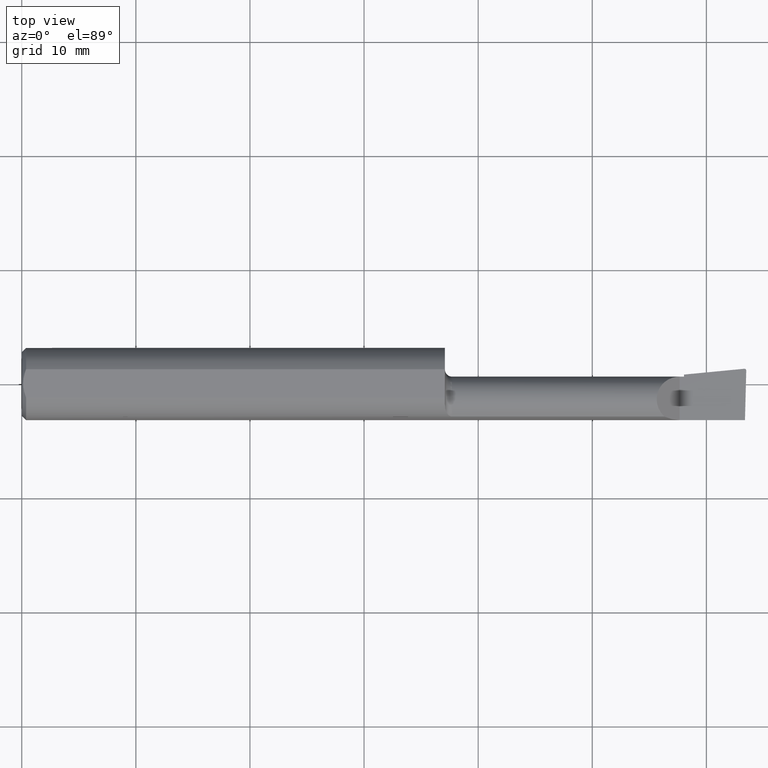
[diagram: clean part render]
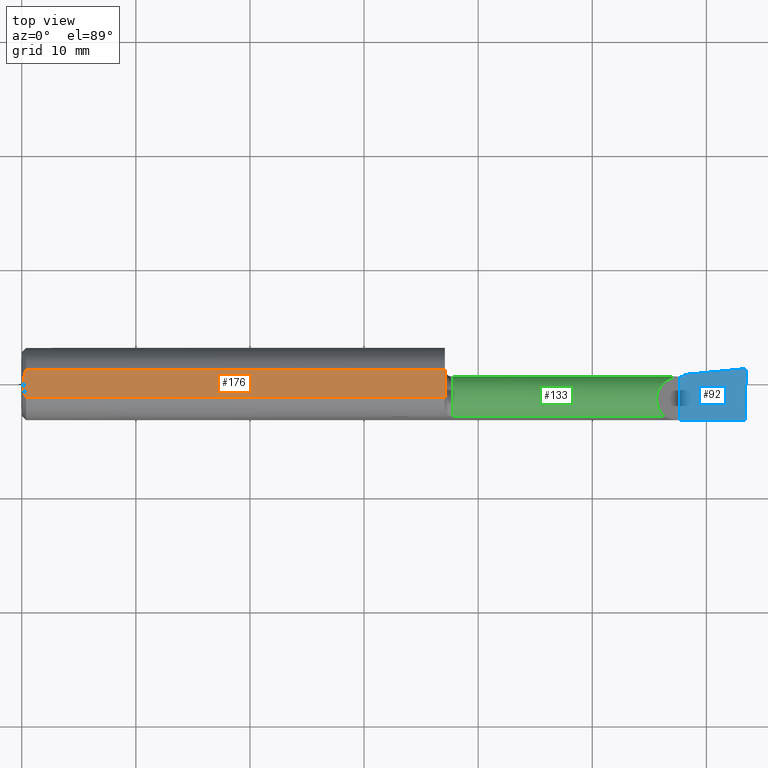
[diagram: same view with three faces highlighted in distinct colors, each labeled with its STEP entity id]
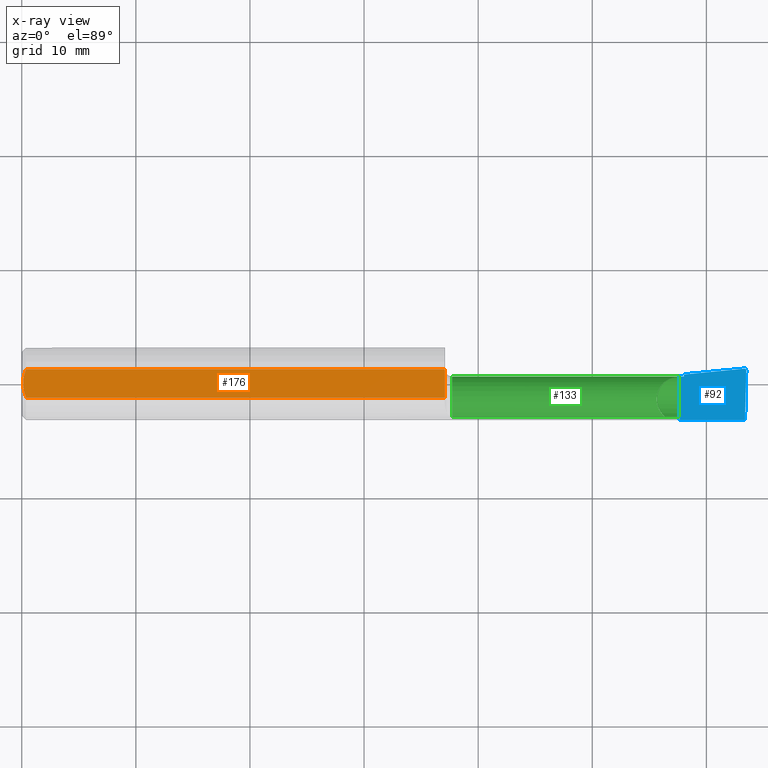
[diagram: x-ray of the same camera — body ghosted, the three highlighted faces saturated]
A machine part, top view with three faces highlighted in distinct colors.
The next image is the same camera in x-ray (body ghosted, the three faces saturated) — at least one of them is partly hidden behind the body in this view.
Their STEP definitions:

[orange] entity #176 — the highlighted planar face has unit normal (0, -0, -1).
#3 = ORIENTED_EDGE ( 'NONE', *, *, #365, .F. ) ;
#8 = CARTESIAN_POINT ( 'NONE',  ( 0.01193974418109659645, 0.04115525648180389656, 0.1148500000000000076 ) ) ;
#9 = CARTESIAN_POINT ( 'NONE',  ( 2.500000000000000000, 0.1748500000000000054, 0.1148500000000000076 ) ) ;
#35 = CARTESIAN_POINT ( 'NONE',  ( 0.005000000000000237761, 1.454187638523587873E-17, 0.1148500000000000076 ) ) ;
#46 = DIRECTION ( 'NONE',  ( 1.000000000000000000, 0.0000000000000000000, 0.0000000000000000000 ) ) ;
#47 = CARTESIAN_POINT ( 'NONE',  ( 0.005000000000000237761, 1.454187638523587873E-17, 0.1148500000000000076 ) ) ;
#61 = LINE ( 'NONE', #559, #432 ) ;
#69 = VERTEX_POINT ( 'NONE', #476 ) ;
#84 = ORIENTED_EDGE ( 'NONE', *, *, #283, .F. ) ;
#123 = CARTESIAN_POINT ( 'NONE',  ( 0.0000000000000000000, 0.04895916665957457392, 0.1148500000000000076 ) ) ;
#130 = LINE ( 'NONE', #123, #525 ) ;
#135 = AXIS2_PLACEMENT_3D ( 'NONE', #9, #642, #144 ) ;
#137 = EDGE_CURVE ( 'NONE', #69, #219, #306, .T. ) ;
#141 = ORIENTED_EDGE ( 'NONE', *, *, #137, .F. ) ;
#144 = DIRECTION ( 'NONE',  ( 0.0000000000000000000, 1.000000000000000000, -4.882484975808304553E-17 ) ) ;
#148 = EDGE_CURVE ( 'NONE', #178, #69, #61, .T. ) ;
#149 = CARTESIAN_POINT ( 'NONE',  ( 0.01499999999999999077, -0.04895916665957456004, 0.1148500000000000215 ) ) ;
#176 = ADVANCED_FACE ( 'NONE', ( #499 ), #641, .F. ) ;
#178 = VERTEX_POINT ( 'NONE', #232 ) ;
#219 = VERTEX_POINT ( 'NONE', #149 ) ;
#232 = CARTESIAN_POINT ( 'NONE',  ( 1.460000000000000187, 0.04895916665957456004, 0.1148500000000000076 ) ) ;
#283 = EDGE_CURVE ( 'NONE', #597, #178, #130, .T. ) ;
#293 = EDGE_LOOP ( 'NONE', ( #613, #84, #543, #3, #141 ) ) ;
#306 = LINE ( 'NONE', #486, #422 ) ;
#339 = CARTESIAN_POINT ( 'NONE',  ( 0.005000000000000194393, -0.008410771716546815852, 0.1148500000000000076 ) ) ;
#359 = CARTESIAN_POINT ( 'NONE',  ( 0.01195732443765553168, -0.04120008761723500251, 0.1148500000000000215 ) ) ;
#365 = EDGE_CURVE ( 'NONE', #219, #632, #564, .T. ) ;
#369 = CARTESIAN_POINT ( 'NONE',  ( 0.009415874254822530556, -0.03313958207962815899, 0.1148500000000000354 ) ) ;
#373 = EDGE_CURVE ( 'NONE', #632, #597, #496, .T. ) ;
#422 = VECTOR ( 'NONE', #493, 39.37007874015748143 ) ;
#432 = VECTOR ( 'NONE', #633, 39.37007874015748143 ) ;
#444 = CARTESIAN_POINT ( 'NONE',  ( 0.005932194444709924276, -0.01671525318617307979, 0.1148500000000000215 ) ) ;
#459 = CARTESIAN_POINT ( 'NONE',  ( 0.005000000000000195260, 0.008410227287019747533, 0.1148500000000000215 ) ) ;
#476 = CARTESIAN_POINT ( 'NONE',  ( 1.460000000000000187, -0.04895916665957457392, 0.1148500000000000215 ) ) ;
#486 = CARTESIAN_POINT ( 'NONE',  ( 0.0000000000000000000, -0.04895916665957456004, 0.1148500000000000076 ) ) ;
#493 = DIRECTION ( 'NONE',  ( -1.000000000000000000, -0.0000000000000000000, -0.0000000000000000000 ) ) ;
#496 = B_SPLINE_CURVE_WITH_KNOTS ( 'NONE', 3,
 ( #548, #459, #524, #650, #8, #630 ),
 .UNSPECIFIED., .F., .F.,
 ( 4, 2, 4 ),
 ( 0.002298356357403497086, 0.002932796277434359007, 0.003567236197465221362 ),
 .UNSPECIFIED. ) ;
#499 = FACE_OUTER_BOUND ( 'NONE', #293, .T. ) ;
#506 = CARTESIAN_POINT ( 'NONE',  ( 0.01499999999999999077, -0.04895916665957456004, 0.1148500000000000215 ) ) ;
#524 = CARTESIAN_POINT ( 'NONE',  ( 0.005947935873631425563, 0.01679708999422678192, 0.1148499999999999938 ) ) ;
#525 = VECTOR ( 'NONE', #46, 39.37007874015748143 ) ;
#529 = CARTESIAN_POINT ( 'NONE',  ( 0.01499999999999999424, 0.04895916665957457392, 0.1148500000000000076 ) ) ;
#543 = ORIENTED_EDGE ( 'NONE', *, *, #373, .F. ) ;
#548 = CARTESIAN_POINT ( 'NONE',  ( 0.005000000000000237761, 1.454187638523587873E-17, 0.1148500000000000076 ) ) ;
#559 = CARTESIAN_POINT ( 'NONE',  ( 1.460000000000000187, 0.1748500000000000054, 0.1148500000000000076 ) ) ;
#564 = B_SPLINE_CURVE_WITH_KNOTS ( 'NONE', 3,
 ( #506, #359, #369, #444, #339, #47 ),
 .UNSPECIFIED., .F., .F.,
 ( 4, 2, 4 ),
 ( 0.001029394377391489035, 0.001663875367397493060, 0.002298356357403497086 ),
 .UNSPECIFIED. ) ;
#597 = VERTEX_POINT ( 'NONE', #529 ) ;
#613 = ORIENTED_EDGE ( 'NONE', *, *, #148, .F. ) ;
#630 = CARTESIAN_POINT ( 'NONE',  ( 0.01499999999999999424, 0.04895916665957457392, 0.1148500000000000076 ) ) ;
#632 = VERTEX_POINT ( 'NONE', #35 ) ;
#633 = DIRECTION ( 'NONE',  ( -3.414809992080329023E-18, -1.000000000000000000, 4.882484975808304553E-17 ) ) ;
#641 = PLANE ( 'NONE',  #135 ) ;
#642 = DIRECTION ( 'NONE',  ( 0.0000000000000000000, -4.882484975808304553E-17, -1.000000000000000000 ) ) ;
#650 = CARTESIAN_POINT ( 'NONE',  ( 0.009410502401328815075, 0.03310661131402416191, 0.1148500000000000076 ) ) ;

[blue] entity #92 — the highlighted planar face has unit normal (-0, 0, -1).
#2 = CARTESIAN_POINT ( 'NONE',  ( 4.111069666048746882E-31, -0.1248499999999999888, 9.802154982235641300E-16 ) ) ;
#31 = EDGE_CURVE ( 'NONE', #311, #119, #614, .T. ) ;
#52 = ORIENTED_EDGE ( 'NONE', *, *, #487, .T. ) ;
#53 = CARTESIAN_POINT ( 'NONE',  ( 2.493512870449331675, 0.05249616680637380489, -5.122214988120493535E-17 ) ) ;
#55 = EDGE_CURVE ( 'NONE', #572, #520, #110, .T. ) ;
#66 = CARTESIAN_POINT ( 'NONE',  ( 2.493512870449331675, 0.05249616680637380489, -5.122214988120493535E-17 ) ) ;
#68 = CARTESIAN_POINT ( 'NONE',  ( 2.492906680581910006, 0.05246699102467097114, -6.532122848641467145E-17 ) ) ;
#77 = VECTOR ( 'NONE', #483, 39.37007874015748143 ) ;
#90 = VECTOR ( 'NONE', #177, 39.37007874015748143 ) ;
#92 = ADVANCED_FACE ( 'NONE', ( #538 ), #222, .F. ) ;
#99 = CARTESIAN_POINT ( 'NONE',  ( 1.387204702863203742, -0.05399999999999999939, 3.984153547983287662E-16 ) ) ;
#110 = LINE ( 'NONE', #2, #90 ) ;
#119 = VERTEX_POINT ( 'NONE', #68 ) ;
#125 = EDGE_CURVE ( 'NONE', #241, #311, #138, .T. ) ;
#138 = LINE ( 'NONE', #532, #379 ) ;
#146 = VECTOR ( 'NONE', #631, 39.37007874015748143 ) ;
#170 = DIRECTION ( 'NONE',  ( 1.000000000000000000, -3.414809992080329023E-18, 0.0000000000000000000 ) ) ;
#172 = EDGE_LOOP ( 'NONE', ( #52, #624, #362, #392, #393, #203, #435, #310 ) ) ;
#174 = CARTESIAN_POINT ( 'NONE',  ( 2.270000000000000018, 0.02514999999999986691, 2.816687638038912303E-17 ) ) ;
#177 = DIRECTION ( 'NONE',  ( -1.000000000000000000, -0.0000000000000000000, -0.0000000000000000000 ) ) ;
#185 = CARTESIAN_POINT ( 'NONE',  ( 2.270000000000000018, -0.1248500000000000165, 2.816687638038912303E-17 ) ) ;
#188 = VERTEX_POINT ( 'NONE', #214 ) ;
#192 = CARTESIAN_POINT ( 'NONE',  ( 2.492067177432473635, -0.2497922717304240092, -6.496913693731578984E-17 ) ) ;
#203 = ORIENTED_EDGE ( 'NONE', *, *, #557, .F. ) ;
#204 = CARTESIAN_POINT ( 'NONE',  ( 2.499806390372797171, 0.04575634663142228581, -6.816679106956261721E-17 ) ) ;
#214 = CARTESIAN_POINT ( 'NONE',  ( 2.499806390372797171, 0.04575634663142228581, -6.816679106956261721E-17 ) ) ;
#218 = CARTESIAN_POINT ( 'NONE',  ( 2.493108609909240325, 0.05248643460740281402, -5.116154136438505500E-17 ) ) ;
#222 = PLANE ( 'NONE',  #570 ) ;
#226 = VECTOR ( 'NONE', #231, 39.37007874015748854 ) ;
#231 = DIRECTION ( 'NONE',  ( 0.02617694830793667465, 0.9996573249755555945, -1.081567693923466137E-17 ) ) ;
#235 = DIRECTION ( 'NONE',  ( -1.000000000000000000, 0.0000000000000000000, 4.194046792260684025E-16 ) ) ;
#237 = CARTESIAN_POINT ( 'NONE',  ( 2.493512870449331675, 0.05249616680637380489, -5.122214988120493535E-17 ) ) ;
#241 = VERTEX_POINT ( 'NONE', #505 ) ;
#246 = CARTESIAN_POINT ( 'NONE',  ( 2.493310817358693754, 0.05249616680637380489, -5.124634811486028890E-17 ) ) ;
#275 = EDGE_CURVE ( 'NONE', #520, #280, #551, .T. ) ;
#280 = VERTEX_POINT ( 'NONE', #174 ) ;
#310 = ORIENTED_EDGE ( 'NONE', *, *, #55, .F. ) ;
#311 = VERTEX_POINT ( 'NONE', #629 ) ;
#315 = CARTESIAN_POINT ( 'NONE',  ( 2.497312560284842053, 0.05249616680637387428, -5.292469782314655041E-17 ) ) ;
#317 = EDGE_CURVE ( 'NONE', #188, #335, #446, .T. ) ;
#323 = EDGE_CURVE ( 'NONE', #335, #119, #547, .T. ) ;
#331 = CARTESIAN_POINT ( 'NONE',  ( 2.500000000000000000, -0.2500000000000000555, -6.829619984160658046E-17 ) ) ;
#335 = VERTEX_POINT ( 'NONE', #53 ) ;
#361 = CARTESIAN_POINT ( 'NONE',  ( 2.702822108735688752E-19, 0.02514999999999991895, 9.802154982235641300E-16 ) ) ;
#362 = ORIENTED_EDGE ( 'NONE', *, *, #323, .T. ) ;
#374 = LINE ( 'NONE', #192, #226 ) ;
#379 = VECTOR ( 'NONE', #490, 39.37007874015748143 ) ;
#387 = LINE ( 'NONE', #361, #596 ) ;
#392 = ORIENTED_EDGE ( 'NONE', *, *, #31, .F. ) ;
#393 = ORIENTED_EDGE ( 'NONE', *, *, #125, .F. ) ;
#428 = DIRECTION ( 'NONE',  ( -4.194046792260684025E-16, 0.0000000000000000000, -1.000000000000000000 ) ) ;
#435 = ORIENTED_EDGE ( 'NONE', *, *, #275, .F. ) ;
#446 =( BOUNDED_CURVE ( )  B_SPLINE_CURVE ( 3, ( #204, #648, #315, #66 ),
 .UNSPECIFIED., .F., .F. ) 
 B_SPLINE_CURVE_WITH_KNOTS ( ( 4, 4 ),
 ( 1.953092279228672234, 3.511516179717975472 ),
 .UNSPECIFIED. ) 
 CURVE ( )  GEOMETRIC_REPRESENTATION_ITEM ( )  RATIONAL_B_SPLINE_CURVE ( ( 1.000000000000000000, 0.8076450242550304859, 0.8076450242550304859, 1.000000000000000000 ) ) 
 REPRESENTATION_ITEM ( '' )  );
#462 = CARTESIAN_POINT ( 'NONE',  ( 2.492906680581910006, 0.05246699102467097114, -6.532122848641467145E-17 ) ) ;
#483 = DIRECTION ( 'NONE',  ( 0.9953961983671787417, 0.09584575252022459191, -4.174738232790345673E-16 ) ) ;
#487 = EDGE_CURVE ( 'NONE', #572, #188, #374, .T. ) ;
#490 = DIRECTION ( 'NONE',  ( 3.414809992080329408E-18, 1.000000000000000000, -1.432187289346423802E-33 ) ) ;
#505 = CARTESIAN_POINT ( 'NONE',  ( 2.285000000000000142, 0.02514999999999996058, 9.802154982235647216E-16 ) ) ;
#507 = CARTESIAN_POINT ( 'NONE',  ( 2.495338905960690301, -0.1248500000000000582, -6.632093541198147639E-17 ) ) ;
#520 = VERTEX_POINT ( 'NONE', #185 ) ;
#532 = CARTESIAN_POINT ( 'NONE',  ( 2.285000000000000142, -0.2500000000000000555, 2.187580619199813988E-17 ) ) ;
#538 = FACE_OUTER_BOUND ( 'NONE', #172, .T. ) ;
#547 =( BOUNDED_CURVE ( )  B_SPLINE_CURVE ( 3, ( #237, #246, #218, #462 ),
 .UNSPECIFIED., .F., .T. ) 
 B_SPLINE_CURVE_WITH_KNOTS ( ( 4, 4 ),
 ( 3.511516179717975472, 3.604018710826573546 ),
 .UNSPECIFIED. ) 
 CURVE ( )  GEOMETRIC_REPRESENTATION_ITEM ( )  RATIONAL_B_SPLINE_CURVE ( ( 1.000000000000000000, 0.9992870672494007511, 0.9992870672494007511, 1.000000000000000000 ) ) 
 REPRESENTATION_ITEM ( '' )  );
#551 = LINE ( 'NONE', #661, #146 ) ;
#557 = EDGE_CURVE ( 'NONE', #280, #241, #387, .T. ) ;
#570 = AXIS2_PLACEMENT_3D ( 'NONE', #331, #428, #235 ) ;
#572 = VERTEX_POINT ( 'NONE', #507 ) ;
#596 = VECTOR ( 'NONE', #170, 39.37007874015748143 ) ;
#614 = LINE ( 'NONE', #99, #77 ) ;
#624 = ORIENTED_EDGE ( 'NONE', *, *, #317, .T. ) ;
#629 = CARTESIAN_POINT ( 'NONE',  ( 2.285000000000000142, 0.03244785463753243476, 9.796236164780443746E-16 ) ) ;
#631 = DIRECTION ( 'NONE',  ( -0.0000000000000000000, 1.000000000000000000, -0.0000000000000000000 ) ) ;
#648 = CARTESIAN_POINT ( 'NONE',  ( 2.499910038027521875, 0.04971449087509935416, -5.401409214261198838E-17 ) ) ;
#661 = CARTESIAN_POINT ( 'NONE',  ( 2.270000000000000018, -0.2500000000000000555, 2.816687638038912303E-17 ) ) ;

[green] entity #133 — the highlighted cylindrical surface (edge-blend (fillet) strip) has radius 2.0104 mm, axis along (-1, 0, -0).
#4 = CARTESIAN_POINT ( 'NONE',  ( 1.485000000000000098, -0.1133222222222221853, -0.05239843939104740084 ) ) ;
#10 = CARTESIAN_POINT ( 'NONE',  ( 0.0000000000000000000, -0.05399999999999999245, 0.0000000000000000000 ) ) ;
#20 = CARTESIAN_POINT ( 'NONE',  ( 2.285000000000000142, -0.01935479767416495300, -0.07116482597324287618 ) ) ;
#21 = DIRECTION ( 'NONE',  ( 0.0000000000000000000, -1.000000000000000000, 0.0000000000000000000 ) ) ;
#29 = DIRECTION ( 'NONE',  ( -1.000000000000000000, 3.414809992080329023E-18, -0.0000000000000000000 ) ) ;
#34 = CARTESIAN_POINT ( 'NONE',  ( 2.486868858499483803, -0.07705019563525719595, -0.07914999999999994262 ) ) ;
#42 = CARTESIAN_POINT ( 'NONE',  ( 2.285000000000000142, 0.01818157456899023236, -0.03247372465149773318 ) ) ;
#63 = DIRECTION ( 'NONE',  ( -3.414809992080329408E-18, -1.000000000000000000, 0.0000000000000000000 ) ) ;
#94 = VERTEX_POINT ( 'NONE', #4 ) ;
#96 = AXIS2_PLACEMENT_3D ( 'NONE', #616, #108, #181 ) ;
#108 = DIRECTION ( 'NONE',  ( -1.000000000000000000, 3.414809992080329023E-18, -0.0000000000000000000 ) ) ;
#122 = CYLINDRICAL_SURFACE ( 'NONE', #549, 0.07914999999999992875 ) ;
#129 = CARTESIAN_POINT ( 'NONE',  ( 2.285000000000000142, -0.05399999999999999939, 0.0000000000000000000 ) ) ;
#133 = ADVANCED_FACE ( 'NONE', ( #589 ), #122, .T. ) ;
#157 = EDGE_CURVE ( 'NONE', #241, #439, #449, .T. ) ;
#160 =( BOUNDED_CURVE ( )  B_SPLINE_CURVE ( 3, ( #471, #250, #508, #527 ),
 .UNSPECIFIED., .F., .T. ) 
 B_SPLINE_CURVE_WITH_KNOTS ( ( 4, 4 ),
 ( 5.435892245814752499, 7.853981633974484566 ),
 .UNSPECIFIED. ) 
 CURVE ( )  GEOMETRIC_REPRESENTATION_ITEM ( )  RATIONAL_B_SPLINE_CURVE ( ( 1.000000000000000000, 0.5692753596694920537, 0.5692753596694920537, 1.000000000000000000 ) ) 
 REPRESENTATION_ITEM ( '' )  );
#166 = VERTEX_POINT ( 'NONE', #377 ) ;
#168 = ORIENTED_EDGE ( 'NONE', *, *, #347, .T. ) ;
#170 = DIRECTION ( 'NONE',  ( 1.000000000000000000, -3.414809992080329023E-18, 0.0000000000000000000 ) ) ;
#174 = CARTESIAN_POINT ( 'NONE',  ( 2.270000000000000018, 0.02514999999999986691, 2.816687638038912303E-17 ) ) ;
#181 = DIRECTION ( 'NONE',  ( 0.0000000000000000000, -1.000000000000000000, 0.0000000000000000000 ) ) ;
#184 = EDGE_LOOP ( 'NONE', ( #465, #276, #512, #168, #295, #494, #627, #649, #628, #243 ) ) ;
#187 = LINE ( 'NONE', #611, #321 ) ;
#194 = CARTESIAN_POINT ( 'NONE',  ( 2.489204846642126157, -0.1133222222222223519, -0.05239843939104731063 ) ) ;
#200 = AXIS2_PLACEMENT_3D ( 'NONE', #257, #260, #262 ) ;
#207 = DIRECTION ( 'NONE',  ( 0.0000000000000000000, -1.000000000000000000, 1.776356839400250465E-15 ) ) ;
#221 = VECTOR ( 'NONE', #503, 39.37007874015748143 ) ;
#223 = EDGE_CURVE ( 'NONE', #352, #94, #372, .T. ) ;
#224 = VERTEX_POINT ( 'NONE', #20 ) ;
#238 = EDGE_CURVE ( 'NONE', #252, #280, #160, .T. ) ;
#240 = CARTESIAN_POINT ( 'NONE',  ( 2.285000000000000142, -0.05399999999999999939, 0.0000000000000000000 ) ) ;
#241 = VERTEX_POINT ( 'NONE', #505 ) ;
#243 = ORIENTED_EDGE ( 'NONE', *, *, #415, .F. ) ;
#250 = CARTESIAN_POINT ( 'NONE',  ( 2.152626807264919506, -0.05593098589442772189, 0.1173731927350791099 ) ) ;
#252 = VERTEX_POINT ( 'NONE', #555 ) ;
#253 = DIRECTION ( 'NONE',  ( 1.000000000000000000, -3.414809992080329023E-18, 0.0000000000000000000 ) ) ;
#256 = CIRCLE ( 'NONE', #96, 0.07914999999999988711 ) ;
#257 = CARTESIAN_POINT ( 'NONE',  ( 2.285000000000000142, -0.05399999999999999939, 0.0000000000000000000 ) ) ;
#258 = DIRECTION ( 'NONE',  ( -1.000000000000000000, 5.691349986800549142E-18, -0.0000000000000000000 ) ) ;
#259 = EDGE_CURVE ( 'NONE', #352, #384, #513, .T. ) ;
#260 = DIRECTION ( 'NONE',  ( -1.000000000000000000, 3.414809992080329023E-18, -0.0000000000000000000 ) ) ;
#262 = DIRECTION ( 'NONE',  ( 0.0000000000000000000, -1.000000000000000000, 0.0000000000000000000 ) ) ;
#263 = EDGE_CURVE ( 'NONE', #224, #439, #663, .T. ) ;
#276 = ORIENTED_EDGE ( 'NONE', *, *, #223, .T. ) ;
#279 = AXIS2_PLACEMENT_3D ( 'NONE', #129, #253, #207 ) ;
#280 = VERTEX_POINT ( 'NONE', #174 ) ;
#284 = CARTESIAN_POINT ( 'NONE',  ( 1.885000000000000231, -0.1133222222222223519, -0.05239843939104731063 ) ) ;
#290 = EDGE_CURVE ( 'NONE', #224, #340, #371, .T. ) ;
#295 = ORIENTED_EDGE ( 'NONE', *, *, #238, .T. ) ;
#321 = VECTOR ( 'NONE', #396, 39.37007874015748143 ) ;
#340 = VERTEX_POINT ( 'NONE', #662 ) ;
#347 = EDGE_CURVE ( 'NONE', #166, #252, #187, .T. ) ;
#352 = VERTEX_POINT ( 'NONE', #615 ) ;
#361 = CARTESIAN_POINT ( 'NONE',  ( 2.702822108735688752E-19, 0.02514999999999991895, 9.802154982235641300E-16 ) ) ;
#371 = CIRCLE ( 'NONE', #200, 0.07914999999999995650 ) ;
#372 = LINE ( 'NONE', #284, #221 ) ;
#375 = VECTOR ( 'NONE', #258, 39.37007874015748143 ) ;
#377 = CARTESIAN_POINT ( 'NONE',  ( 1.485000000000000098, -0.1133222222222221992, 0.05239843939104738696 ) ) ;
#380 = EDGE_CURVE ( 'NONE', #166, #94, #256, .T. ) ;
#384 = VERTEX_POINT ( 'NONE', #537 ) ;
#387 = LINE ( 'NONE', #361, #596 ) ;
#389 = DIRECTION ( 'NONE',  ( -1.000000000000000000, 3.414809992080329023E-18, -0.0000000000000000000 ) ) ;
#396 = DIRECTION ( 'NONE',  ( 1.000000000000000000, -3.414809992080329023E-18, 0.0000000000000000000 ) ) ;
#415 = EDGE_CURVE ( 'NONE', #384, #340, #578, .T. ) ;
#439 = VERTEX_POINT ( 'NONE', #42 ) ;
#449 = CIRCLE ( 'NONE', #656, 0.07914999999999995650 ) ;
#465 = ORIENTED_EDGE ( 'NONE', *, *, #259, .F. ) ;
#471 = CARTESIAN_POINT ( 'NONE',  ( 2.217601560608951861, -0.1133222222222222686, 0.05239843939104743553 ) ) ;
#494 = ORIENTED_EDGE ( 'NONE', *, *, #557, .T. ) ;
#503 = DIRECTION ( 'NONE',  ( -1.000000000000000000, 3.414809992080329023E-18, -0.0000000000000000000 ) ) ;
#505 = CARTESIAN_POINT ( 'NONE',  ( 2.285000000000000142, 0.02514999999999996058, 9.802154982235647216E-16 ) ) ;
#508 = CARTESIAN_POINT ( 'NONE',  ( 2.183308174668249446, 0.02515000000000007507, 0.08669182533174910055 ) ) ;
#512 = ORIENTED_EDGE ( 'NONE', *, *, #380, .F. ) ;
#513 =( BOUNDED_CURVE ( )  B_SPLINE_CURVE ( 3, ( #194, #533, #34, #517 ),
 .UNSPECIFIED., .F., .T. ) 
 B_SPLINE_CURVE_WITH_KNOTS ( ( 4, 4 ),
 ( 5.645941690095284571, 6.493234751460120968 ),
 .UNSPECIFIED. ) 
 CURVE ( )  GEOMETRIC_REPRESENTATION_ITEM ( )  RATIONAL_B_SPLINE_CURVE ( ( 1.000000000000000000, 0.9410639745696121050, 0.9410639745696121050, 1.000000000000000000 ) ) 
 REPRESENTATION_ITEM ( '' )  );
#517 = CARTESIAN_POINT ( 'NONE',  ( 2.487472449114545014, -0.05399999999999999939, -0.07914999999999994262 ) ) ;
#527 = CARTESIAN_POINT ( 'NONE',  ( 2.270000000000000018, 0.02514999999999986691, 2.816687638038912303E-17 ) ) ;
#533 = CARTESIAN_POINT ( 'NONE',  ( 2.487482489302630384, -0.09806266089631200666, -0.06967435635555048468 ) ) ;
#537 = CARTESIAN_POINT ( 'NONE',  ( 2.487472449114545014, -0.05399999999999999939, -0.07914999999999994262 ) ) ;
#549 = AXIS2_PLACEMENT_3D ( 'NONE', #10, #389, #63 ) ;
#555 = CARTESIAN_POINT ( 'NONE',  ( 2.217601560608951861, -0.1133222222222222686, 0.05239843939104743553 ) ) ;
#557 = EDGE_CURVE ( 'NONE', #280, #241, #387, .T. ) ;
#578 = LINE ( 'NONE', #640, #375 ) ;
#589 = FACE_OUTER_BOUND ( 'NONE', #184, .T. ) ;
#596 = VECTOR ( 'NONE', #170, 39.37007874015748143 ) ;
#611 = CARTESIAN_POINT ( 'NONE',  ( 1.885000000000000231, -0.1133222222222223519, 0.05239843939104731063 ) ) ;
#615 = CARTESIAN_POINT ( 'NONE',  ( 2.489204846642126157, -0.1133222222222223519, -0.05239843939104731063 ) ) ;
#616 = CARTESIAN_POINT ( 'NONE',  ( 1.485000000000000098, -0.05399999999999999939, 0.0000000000000000000 ) ) ;
#627 = ORIENTED_EDGE ( 'NONE', *, *, #157, .T. ) ;
#628 = ORIENTED_EDGE ( 'NONE', *, *, #290, .T. ) ;
#640 = CARTESIAN_POINT ( 'NONE',  ( 2.500000000000000000, -0.05399999999999999939, -0.07914999999999994262 ) ) ;
#649 = ORIENTED_EDGE ( 'NONE', *, *, #263, .F. ) ;
#656 = AXIS2_PLACEMENT_3D ( 'NONE', #240, #29, #21 ) ;
#662 = CARTESIAN_POINT ( 'NONE',  ( 2.285000000000000142, -0.05399999999999999939, -0.07914999999999994262 ) ) ;
#663 = CIRCLE ( 'NONE', #279, 0.07914999999999992875 ) ;